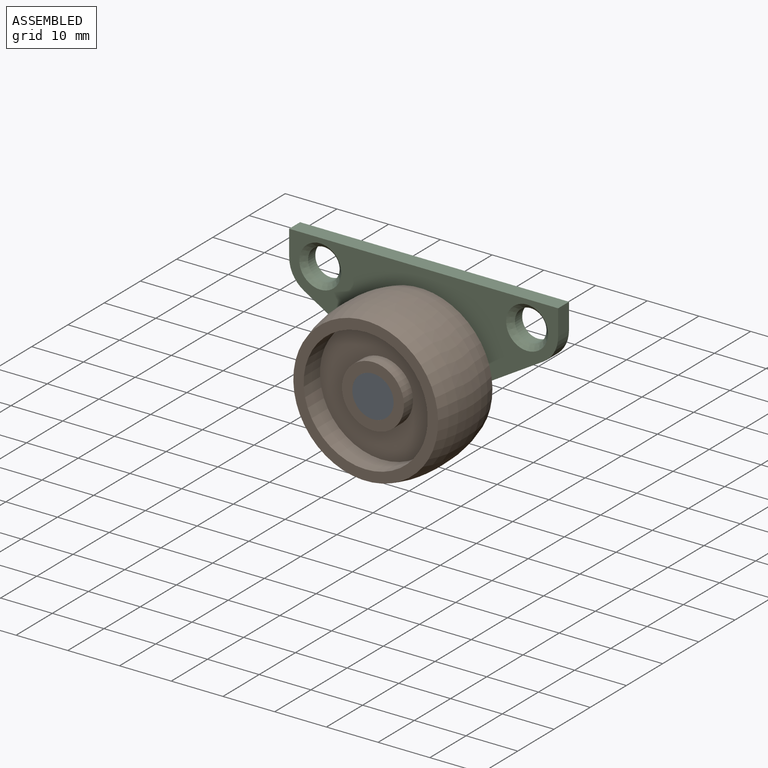
[diagram: assembled view]
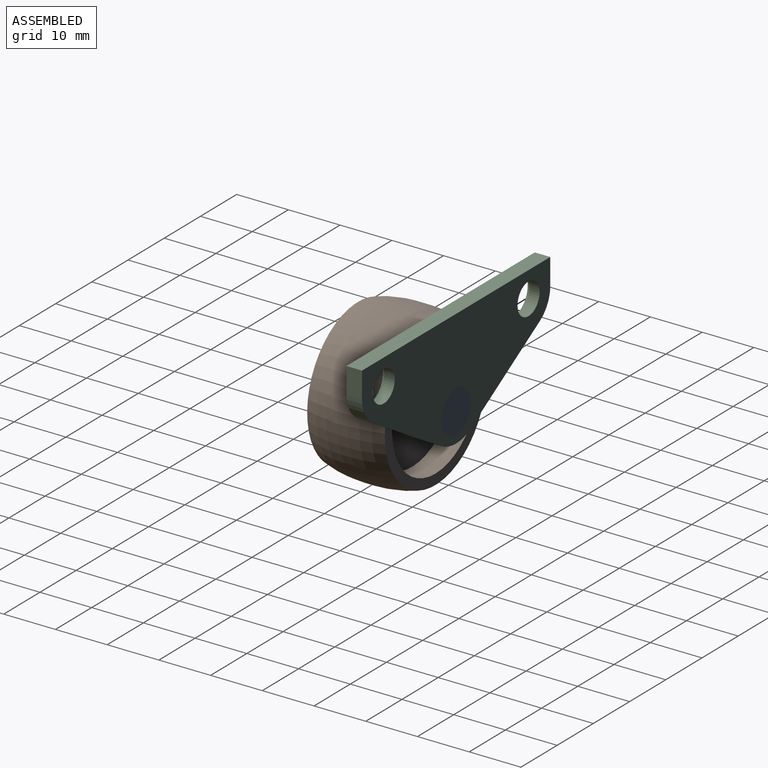
[diagram: assembled view, second angle]
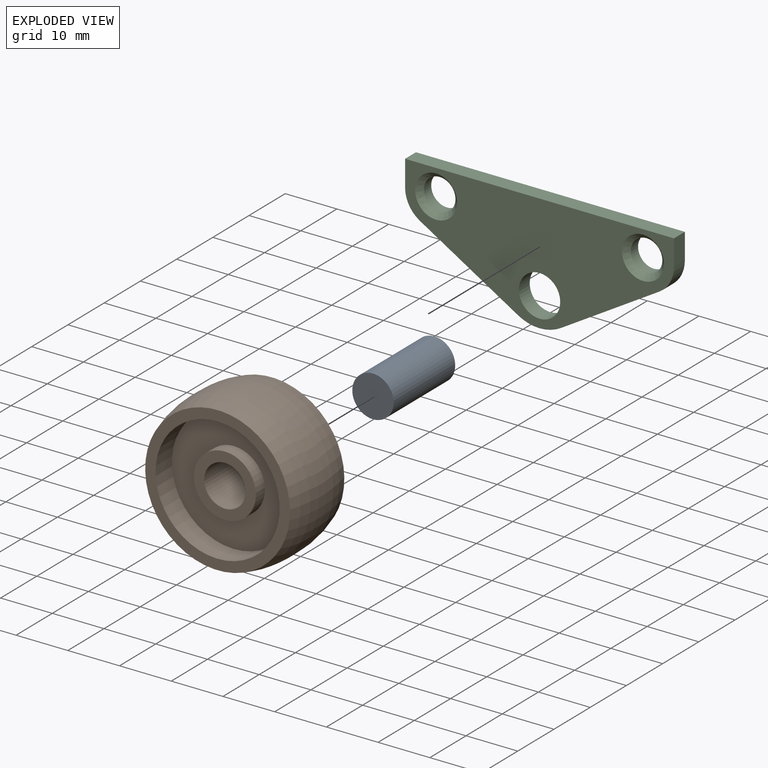
[diagram: exploded view]
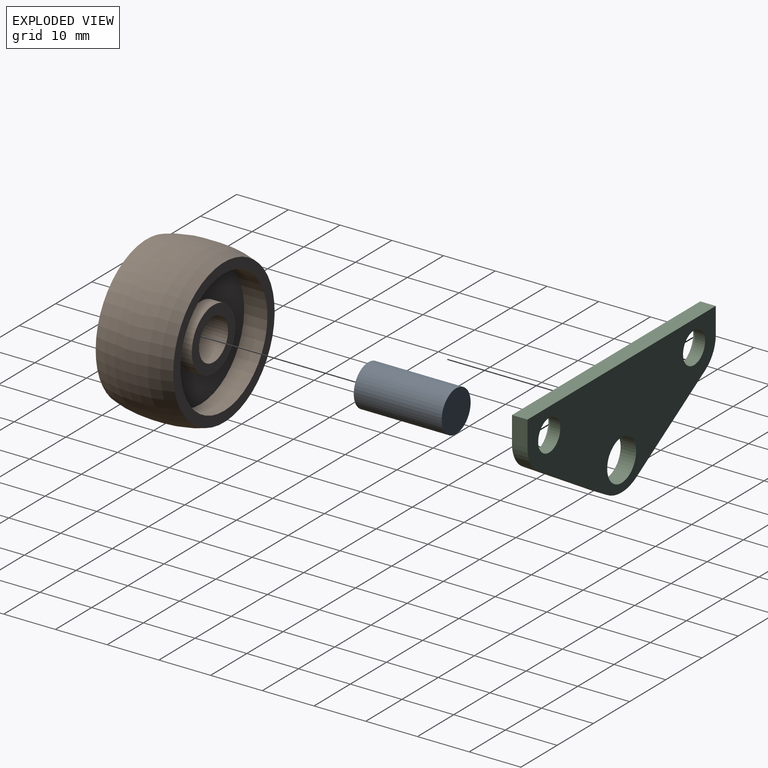
[diagram: exploded view, second angle]
ASSEMBLY  parts=3 mates=2
PART A: 3 faces, bbox 8x17x8 mm
  f0: cylinder r=4mm len=17mm, axis (0,-1,0), area 427.3mm2, adj f1,f2
  f1: plane 8x8mm, normal (0,1,0), area 50.3mm2, adj f0
  f2: plane 8x8mm, normal (0,-1,0), area 50.3mm2, adj f0
PART B: 14 faces, bbox 30x15x30 mm
  f0: cylinder r=6mm len=12mm, axis (0,1,0), area 94.2mm2, adj f1,f13
  f1: plane 12x12mm, normal (0,-1,0), area 62.8mm2, adj f0,f2
  f2: cylinder r=4mm len=11mm, axis (0,1,0), area 276.5mm2, adj f1,f3
  f3: plane 12x12mm, normal (0,1,0), area 62.8mm2, adj f2,f4
  f4: cylinder r=6mm len=12mm, axis (0,1,0), area 94.2mm2, adj f3,f5
  f5: plane 24x24mm, normal (0,1,0), area 339.3mm2, adj f4,f6
  f6: cylinder r=12mm len=24mm, axis (0,1,0), area 339.3mm2, adj f5,f7
  f7: plane 28x28mm, normal (0,1,0), area 163.4mm2, adj f6,f8
  f8: revolved ~30x30mm, area 608.4mm2, adj f7,f9
  f9: cylinder r=15mm len=30mm, axis (0,1,0), area 188.5mm2, adj f8,f10
  f10: revolved ~30x30mm, area 608.4mm2, adj f9,f11
  f11: plane 28x28mm, normal (0,-1,0), area 163.4mm2, adj f10,f12
  f12: cylinder r=12mm len=24mm, axis (0,1,0), area 339.3mm2, adj f11,f13
  f13: plane 24x24mm, normal (0,-1,0), area 339.3mm2, adj f0,f12
PART C: 15 faces, bbox 52x3x22.7 mm
  f0: plane 19x11.43mm, normal (-0.52,0,-0.86), area 66.5mm2, adj f1,f7,f11,f12
  f1: cylinder r=8mm len=8.25mm, axis (0,-1,0), area 26mm2, adj f0,f2,f11,f12
  f2: plane 19x11.43mm, normal (0.52,0,-0.86), area 66.5mm2, adj f1,f3,f11,f12
  f3: cylinder r=5.93mm len=5.08mm, axis (0,-1,0), area 18.3mm2, adj f2,f4,f11,f12
  f4: plane 5x3mm, normal (1,0,0), area 15mm2, adj f3,f5,f11,f12
  f5: plane 52x3mm, normal (0,0,1), area 156mm2, adj f4,f6,f11,f12
  f6: plane 5x3mm, normal (-1,0,0), area 15mm2, adj f5,f7,f11,f12
  f7: cylinder r=5.93mm len=5.08mm, axis (0,-1,0), area 18.3mm2, adj f0,f6,f11,f12
  f8: cylinder r=3.05mm len=6.1mm, axis (0,-1,0), area 38.3mm2, adj f11,f14
  f9: cylinder r=3.05mm len=6.1mm, axis (0,-1,0), area 38.3mm2, adj f11,f13
  f10: cylinder r=4mm len=8mm, axis (0,-1,0), area 75.4mm2, adj f11,f12
  f11: plane 52x22.66mm, normal (0,1,0), area 725.1mm2, adj f0,f1,f2,f3,f4,f5,f6,f7
  f12: plane 52x22.66mm, normal (0,-1,0), area 680.5mm2, adj f0,f1,f2,f3,f4,f5,f6,f7
  f13: cone r=3.05mm half-angle=45deg, axis (0,-1,0), area 31.5mm2, adj f9,f12
  f14: cone r=3.05mm half-angle=45deg, axis (0,-1,0), area 31.5mm2, adj f8,f12
PLACE A t=(24.61,-6.81,-36.59)mm
PLACE B rot(axis=(0,1,0),112.2deg) t=(7.93,-6.81,-11.81)mm
PLACE C t=(-1.39,1.69,-1.59)mm fixed
MATE fastened A.f0 <-> C.f10  axis (0,1,0) through (24.61,4.69,-18.59)mm
MATE revolute B.f0 <-> A.f0  axis (0,1,0) through (24.61,-12.31,-18.59)mm
